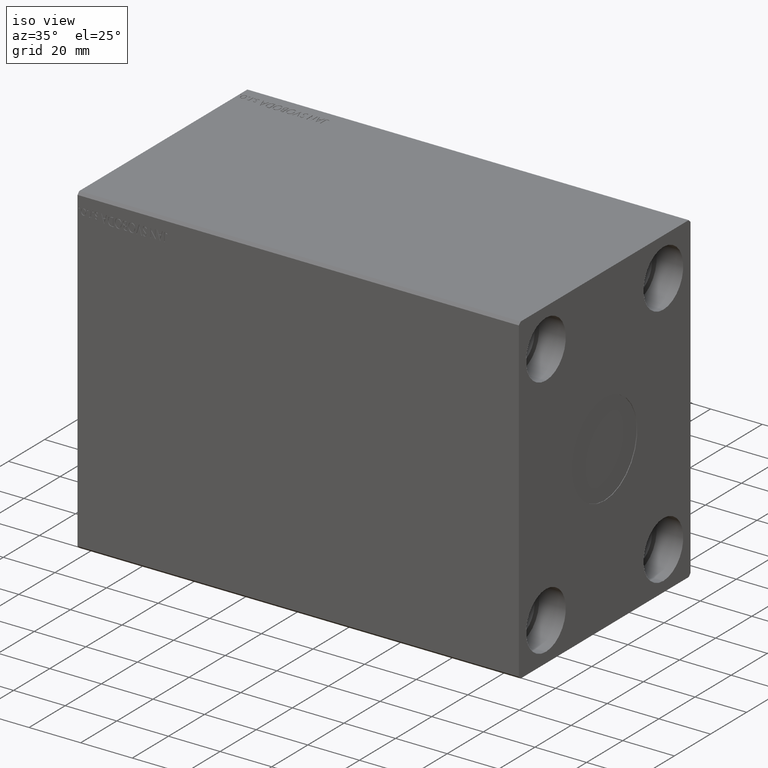
[diagram: clean part render]
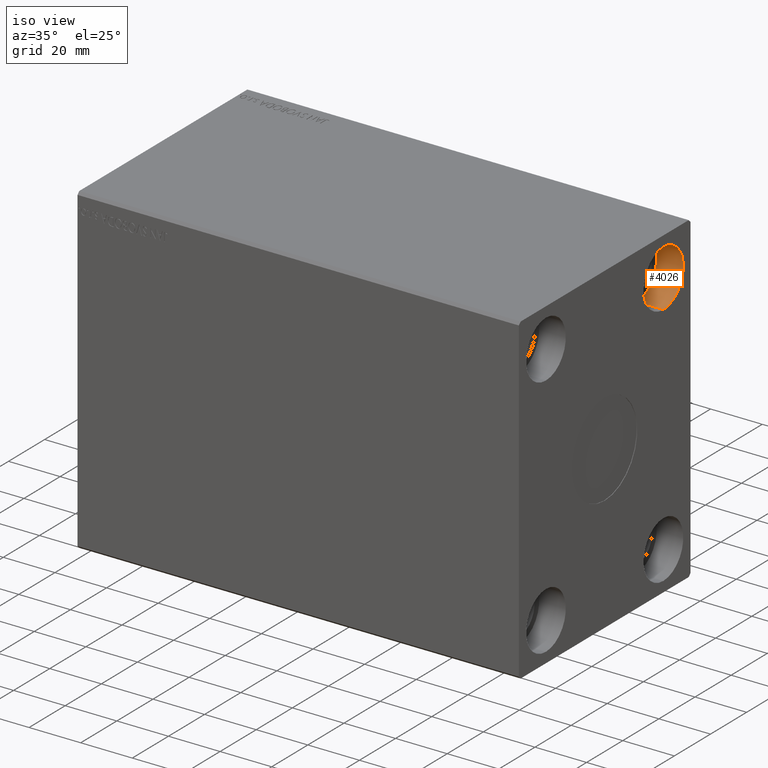
[diagram: same view with one face highlighted and labeled with its STEP entity id]
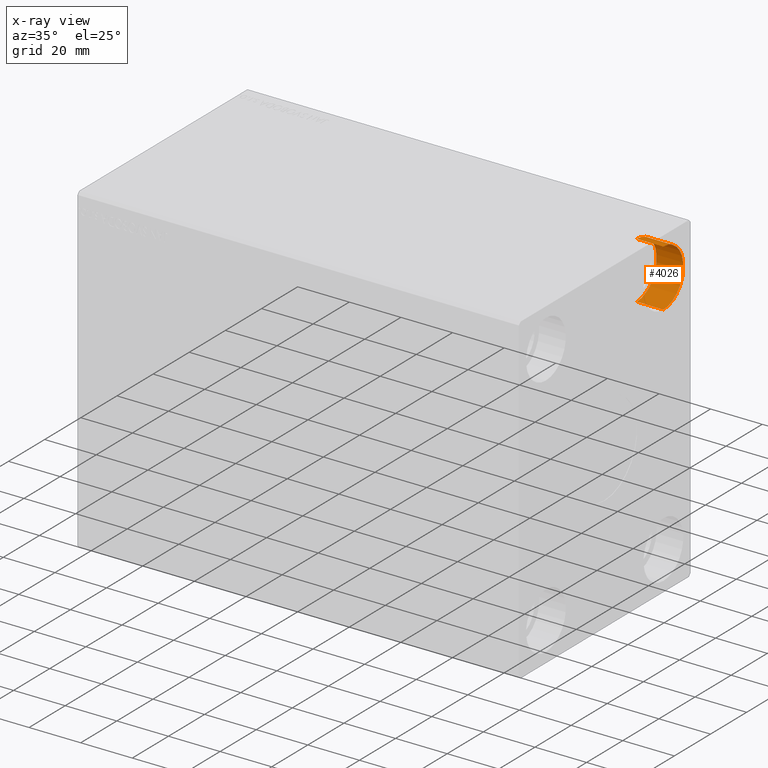
[diagram: x-ray of the same camera — body ghosted, the highlighted face saturated]
A machine part, iso view. The second image highlights one B-rep face of the part: STEP entity #4026.
The next image is the same camera in x-ray: the body ghosted, the highlighted face saturated — about 0% of this face is hidden behind the body in this view.
In plain terms, the highlighted cylindrical surface (edge-blend (fillet) strip) has radius 11 mm, axis along (1, -0, -0).
Its self-contained STEP definition (entity closure, byte-faithful):
#1376 = LINE ( 'NONE', #8472, #17709 ) ;
#1796 = DIRECTION ( 'NONE',  ( 1.000000000000000000, -0.000000000000000000, -0.000000000000000000 ) ) ;
#1858 = VERTEX_POINT ( 'NONE', #21408 ) ;
#2362 = DIRECTION ( 'NONE',  ( 1.000000000000000000, -0.000000000000000000, -0.000000000000000000 ) ) ;
#4026 = ADVANCED_FACE ( 'NONE', ( #10156 ), #23478, .F. ) ;
#4086 = DIRECTION ( 'NONE',  ( 0.000000000000000000, 0.000000000000000000, -1.000000000000000000 ) ) ;
#5588 = CARTESIAN_POINT ( 'NONE',  ( 160.6700000000000159, 32.50000000000000000, 47.50000000000000000 ) ) ;
#5682 = CIRCLE ( 'NONE', #22165, 10.99999999999999645 ) ;
#6285 = DIRECTION ( 'NONE',  ( 1.000000000000000000, -0.000000000000000000, -0.000000000000000000 ) ) ;
#8472 = CARTESIAN_POINT ( 'NONE',  ( 160.6700000000000159, 32.50000000000000000, 58.50000000000000000 ) ) ;
#9147 = EDGE_CURVE ( 'NONE', #40329, #29801, #5682, .T. ) ;
#9211 = AXIS2_PLACEMENT_3D ( 'NONE', #5588, #2362, #15482 ) ;
#9529 = DIRECTION ( 'NONE',  ( 0.000000000000000000, 0.000000000000000000, -1.000000000000000000 ) ) ;
#10127 = CARTESIAN_POINT ( 'NONE',  ( 171.0000000000000000, 32.50000000000000000, 47.50000000000000000 ) ) ;
#10156 = FACE_OUTER_BOUND ( 'NONE', #25467, .T. ) ;
#12537 = CARTESIAN_POINT ( 'NONE',  ( 171.0000000000000000, 32.50000000000000000, 58.50000000000000000 ) ) ;
#13131 = DIRECTION ( 'NONE',  ( 1.000000000000000000, -0.000000000000000000, -0.000000000000000000 ) ) ;
#15482 = DIRECTION ( 'NONE',  ( 0.000000000000000000, 0.000000000000000000, -1.000000000000000000 ) ) ;
#15907 = AXIS2_PLACEMENT_3D ( 'NONE', #26486, #6285, #9529 ) ;
#17167 = EDGE_CURVE ( 'NONE', #1858, #28750, #21541, .T. ) ;
#17371 = CARTESIAN_POINT ( 'NONE',  ( 171.0000000000000000, 32.50000000000000000, 36.50000000000000711 ) ) ;
#17709 = VECTOR ( 'NONE', #1796, 1000.000000000000000 ) ;
#20271 = ORIENTED_EDGE ( 'NONE', *, *, #9147, .T. ) ;
#21408 = CARTESIAN_POINT ( 'NONE',  ( 160.6700000000000159, 32.50000000000000000, 36.50000000000000711 ) ) ;
#21541 = CIRCLE ( 'NONE', #9211, 10.99999999999999645 ) ;
#22165 = AXIS2_PLACEMENT_3D ( 'NONE', #10127, #13131, #4086 ) ;
#23478 = CYLINDRICAL_SURFACE ( 'NONE', #15907, 10.99999999999999645 ) ;
#25032 = ORIENTED_EDGE ( 'NONE', *, *, #17167, .F. ) ;
#25467 = EDGE_LOOP ( 'NONE', ( #40490, #25032, #40598, #20271 ) ) ;
#26486 = CARTESIAN_POINT ( 'NONE',  ( 160.6700000000000159, 32.50000000000000000, 47.50000000000000000 ) ) ;
#28750 = VERTEX_POINT ( 'NONE', #33967 ) ;
#29801 = VERTEX_POINT ( 'NONE', #12537 ) ;
#30648 = EDGE_CURVE ( 'NONE', #28750, #29801, #1376, .T. ) ;
#31455 = DIRECTION ( 'NONE',  ( 1.000000000000000000, -0.000000000000000000, -0.000000000000000000 ) ) ;
#31886 = CARTESIAN_POINT ( 'NONE',  ( 160.6700000000000159, 32.50000000000000000, 36.50000000000000711 ) ) ;
#33967 = CARTESIAN_POINT ( 'NONE',  ( 160.6700000000000159, 32.50000000000000000, 58.50000000000000000 ) ) ;
#34349 = EDGE_CURVE ( 'NONE', #1858, #40329, #34882, .T. ) ;
#34882 = LINE ( 'NONE', #31886, #38330 ) ;
#38330 = VECTOR ( 'NONE', #31455, 1000.000000000000000 ) ;
#40329 = VERTEX_POINT ( 'NONE', #17371 ) ;
#40490 = ORIENTED_EDGE ( 'NONE', *, *, #30648, .F. ) ;
#40598 = ORIENTED_EDGE ( 'NONE', *, *, #34349, .T. ) ;